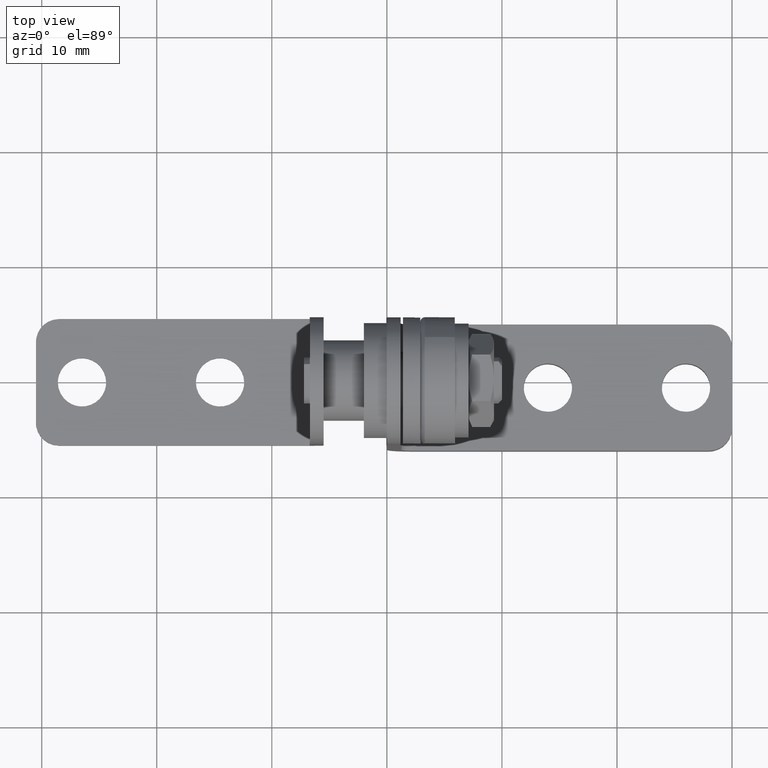
[diagram: clean part render]
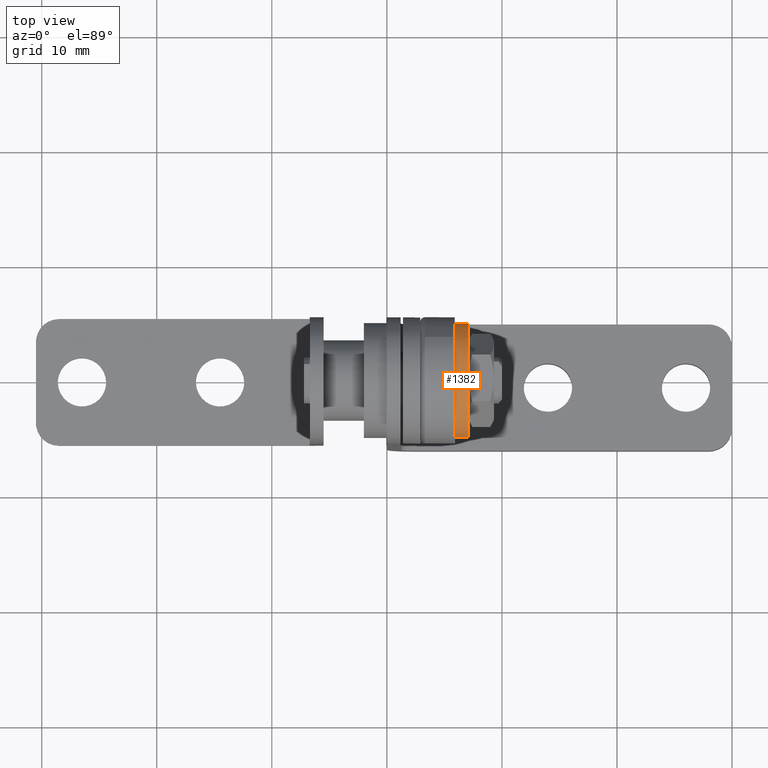
[diagram: same view with one face highlighted and labeled with its STEP entity id]
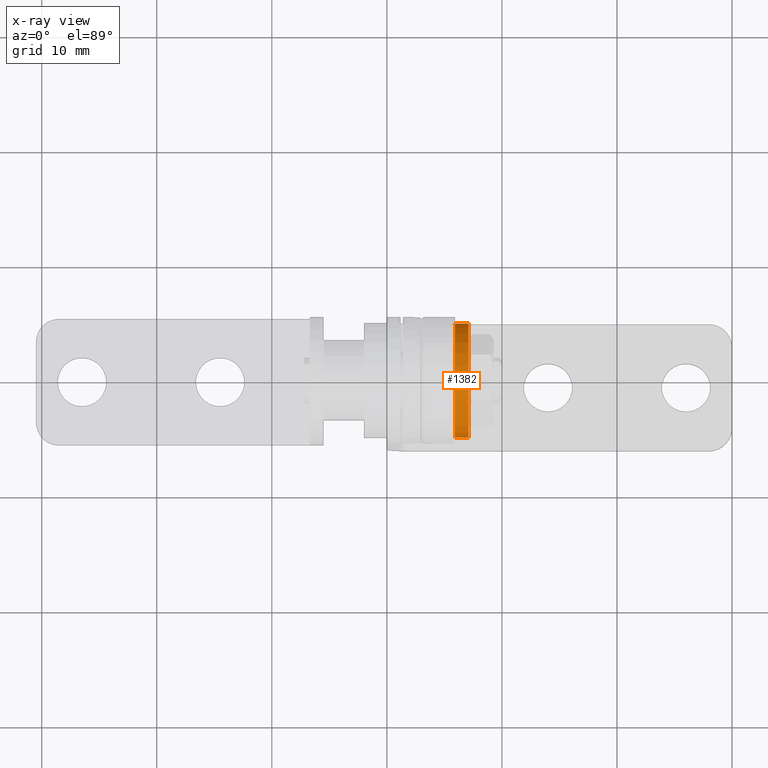
[diagram: x-ray of the same camera — body ghosted, the highlighted face saturated]
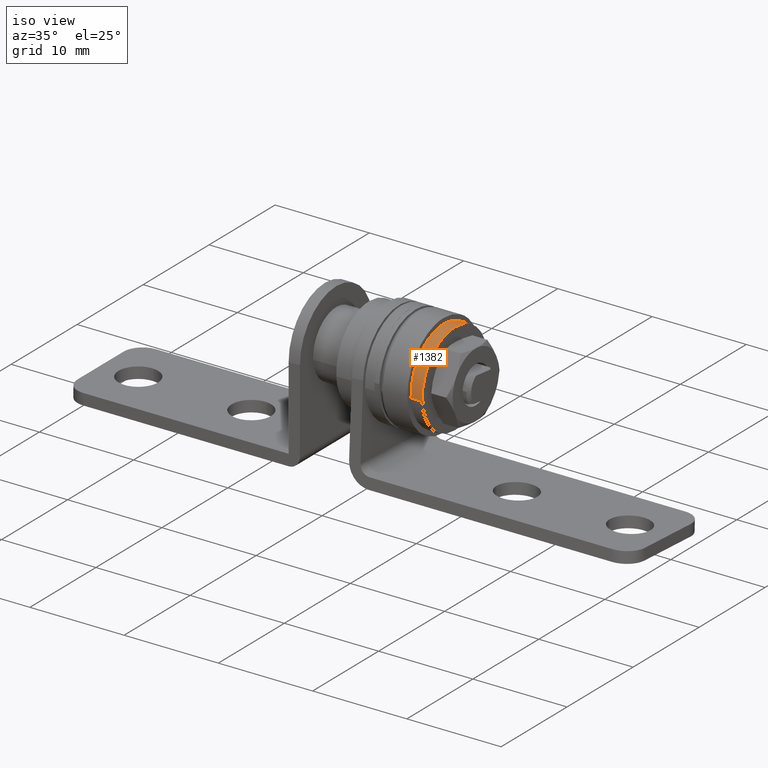
[diagram: same view with one face highlighted and labeled with its STEP entity id]
A machine part, top view. The second image highlights one B-rep face of the part: STEP entity #1382.
The next image is the same camera in x-ray: the body ghosted, the highlighted face saturated — about 0% of this face is hidden behind the body in this view.
A second angle (iso view) of the same face is appended — the face is thin or edge-on in the first view.
In plain terms, the highlighted face is a freeform B-spline surface patch.
Its self-contained STEP definition (entity closure, byte-faithful):
#1006=CARTESIAN_POINT('',(5.900000000000000,3.987300E-015,4.950000000000000));
#1007=VERTEX_POINT('',#1006);
#1008=CARTESIAN_POINT('',(5.900000000000000,4.940767252184832,0.302190270753328));
#1009=VERTEX_POINT('',#1008);
#1010=CARTESIAN_POINT('',(5.900000000000000,3.987300E-015,4.950000000000000));
#1011=CARTESIAN_POINT('',(5.900000000000000,4.656495031130520,4.950000000000000));
#1012=CARTESIAN_POINT('',(5.900000000000002,4.940767252184835,0.302190270753327));
#1020=(BOUNDED_CURVE()B_SPLINE_CURVE(2,(#1010,#1011,#1012),.UNSPECIFIED.,.F.,.U.)B_SPLINE_CURVE_WITH_KNOTS((3,3),(0.0,0.239332962240020),.UNSPECIFIED.)CURVE()GEOMETRIC_REPRESENTATION_ITEM()RATIONAL_B_SPLINE_CURVE((1.0,0.719603993285448,0.976072041669026))REPRESENTATION_ITEM(''));
#1021=EDGE_CURVE('',#1007,#1009,#1020,.T.);
#1040=CARTESIAN_POINT('',(5.900000000000000,-4.940767252184825,-0.302190270753328));
#1041=VERTEX_POINT('',#1040);
#1055=CARTESIAN_POINT('',(5.900000000000002,-4.940767252184826,-0.302190270753327));
#1056=CARTESIAN_POINT('',(5.900000000000000,-4.949999999999995,-0.151236178355986));
#1057=CARTESIAN_POINT('',(5.900000000000000,-4.949999999999996,0.0));
#1058=CARTESIAN_POINT('',(5.900000000000000,-4.949999999999996,4.950000000000000));
#1059=CARTESIAN_POINT('',(5.900000000000000,3.987300E-015,4.950000000000000));
#1067=(BOUNDED_CURVE()B_SPLINE_CURVE(2,(#1055,#1056,#1057,#1058,#1059),.UNSPECIFIED.,.F.,.U.)B_SPLINE_CURVE_WITH_KNOTS((3,2,3),(0.739332962240020,0.750000000000000,1.0),.UNSPECIFIED.)CURVE()GEOMETRIC_REPRESENTATION_ITEM()RATIONAL_B_SPLINE_CURVE((0.976072041669026,0.987502787901099,1.0,0.707106781186547,1.0))REPRESENTATION_ITEM(''));
#1068=EDGE_CURVE('',#1041,#1007,#1067,.T.);
#1280=CARTESIAN_POINT('',(7.099999999999999,4.940767252184832,0.302190270753327));
#1281=VERTEX_POINT('',#1280);
#1282=CARTESIAN_POINT('',(7.099999999999999,4.940767252184832,0.302190270753327));
#1283=CARTESIAN_POINT('',(5.900000000000000,4.940767252184832,0.302190270753328));
#1284=QUASI_UNIFORM_CURVE('',1,(#1282,#1283),.UNSPECIFIED.,.F.,.U.);
#1285=EDGE_CURVE('',#1281,#1009,#1284,.T.);
#1304=CARTESIAN_POINT('',(7.100000000000000,-4.940767252184825,-0.302190270753328));
#1305=VERTEX_POINT('',#1304);
#1319=CARTESIAN_POINT('',(7.100000000000000,-4.940767252184825,-0.302190270753328));
#1320=CARTESIAN_POINT('',(5.900000000000000,-4.940767252184825,-0.302190270753328));
#1321=QUASI_UNIFORM_CURVE('',1,(#1319,#1320),.UNSPECIFIED.,.F.,.U.);
#1322=EDGE_CURVE('',#1305,#1041,#1321,.T.);
#1328=CARTESIAN_POINT('',(7.130000000000001,-4.940767252188237,-0.302190270697542));
#1329=CARTESIAN_POINT('',(7.130000000000001,-5.242957522885780,4.638576981490699));
#1330=CARTESIAN_POINT('',(7.130000000000001,-0.302190270697538,4.940767252188240));
#1331=CARTESIAN_POINT('',(7.130000000000001,4.638576981490702,5.242957522885781));
#1332=CARTESIAN_POINT('',(7.130000000000001,4.940767252188244,0.302190270697542));
#1333=CARTESIAN_POINT('',(5.869249999999999,-4.940767252188237,-0.302190270697542));
#1334=CARTESIAN_POINT('',(5.869249999999999,-5.242957522885780,4.638576981490699));
#1335=CARTESIAN_POINT('',(5.869249999999999,-0.302190270697538,4.940767252188240));
#1336=CARTESIAN_POINT('',(5.869249999999999,4.638576981490702,5.242957522885781));
#1337=CARTESIAN_POINT('',(5.869249999999999,4.940767252188244,0.302190270697542));
#1345=(BOUNDED_SURFACE()B_SPLINE_SURFACE(2,1,((#1328,#1333),(#1329,#1334),(#1330,#1335),(#1331,#1336),(#1332,#1337)),.UNSPECIFIED.,.F.,.F.,.U.)B_SPLINE_SURFACE_WITH_KNOTS((3,2,3),(2,2),(0.0,8.201428534987281,16.402857069974559),(0.0,1.0),.UNSPECIFIED.)GEOMETRIC_REPRESENTATION_ITEM()RATIONAL_B_SPLINE_SURFACE(((1.0,1.0),(0.707106781186548,0.707106781186548),(1.0,1.0),(0.707106781186548,0.707106781186548),(1.0,1.0)))REPRESENTATION_ITEM('')SURFACE());
#1346=ORIENTED_EDGE('',*,*,#1021,.F.);
#1347=ORIENTED_EDGE('',*,*,#1068,.F.);
#1348=ORIENTED_EDGE('',*,*,#1322,.F.);
#1349=CARTESIAN_POINT('',(7.100000000000000,3.987300E-015,4.950000000000000));
#1350=VERTEX_POINT('',#1349);
#1351=CARTESIAN_POINT('',(7.100000000000001,-4.940767252184826,-0.302190270753327));
#1352=CARTESIAN_POINT('',(7.100000000000000,-4.949999999999995,-0.151236178355986));
#1353=CARTESIAN_POINT('',(7.100000000000000,-4.949999999999996,0.0));
#1354=CARTESIAN_POINT('',(7.100000000000001,-4.949999999999996,4.950000000000000));
#1355=CARTESIAN_POINT('',(7.100000000000000,3.987300E-015,4.950000000000000));
#1363=(BOUNDED_CURVE()B_SPLINE_CURVE(2,(#1351,#1352,#1353,#1354,#1355),.UNSPECIFIED.,.F.,.U.)B_SPLINE_CURVE_WITH_KNOTS((3,2,3),(0.739332962240020,0.750000000000000,1.0),.UNSPECIFIED.)CURVE()GEOMETRIC_REPRESENTATION_ITEM()RATIONAL_B_SPLINE_CURVE((0.976072041669026,0.987502787901099,1.0,0.707106781186547,1.0))REPRESENTATION_ITEM(''));
#1364=EDGE_CURVE('',#1305,#1350,#1363,.T.);
#1365=ORIENTED_EDGE('',*,*,#1364,.T.);
#1366=CARTESIAN_POINT('',(7.100000000000000,3.987300E-015,4.950000000000000));
#1367=CARTESIAN_POINT('',(7.100000000000001,4.656495031130520,4.950000000000000));
#1368=CARTESIAN_POINT('',(7.100000000000001,4.940767252184835,0.302190270753327));
#1376=(BOUNDED_CURVE()B_SPLINE_CURVE(2,(#1366,#1367,#1368),.UNSPECIFIED.,.F.,.U.)B_SPLINE_CURVE_WITH_KNOTS((3,3),(0.0,0.239332962240020),.UNSPECIFIED.)CURVE()GEOMETRIC_REPRESENTATION_ITEM()RATIONAL_B_SPLINE_CURVE((1.0,0.719603993285448,0.976072041669026))REPRESENTATION_ITEM(''));
#1377=EDGE_CURVE('',#1350,#1281,#1376,.T.);
#1378=ORIENTED_EDGE('',*,*,#1377,.T.);
#1379=ORIENTED_EDGE('',*,*,#1285,.T.);
#1380=EDGE_LOOP('',(#1346,#1347,#1348,#1365,#1378,#1379));
#1381=FACE_OUTER_BOUND('',#1380,.T.);
#1382=ADVANCED_FACE('',(#1381),#1345,.T.);